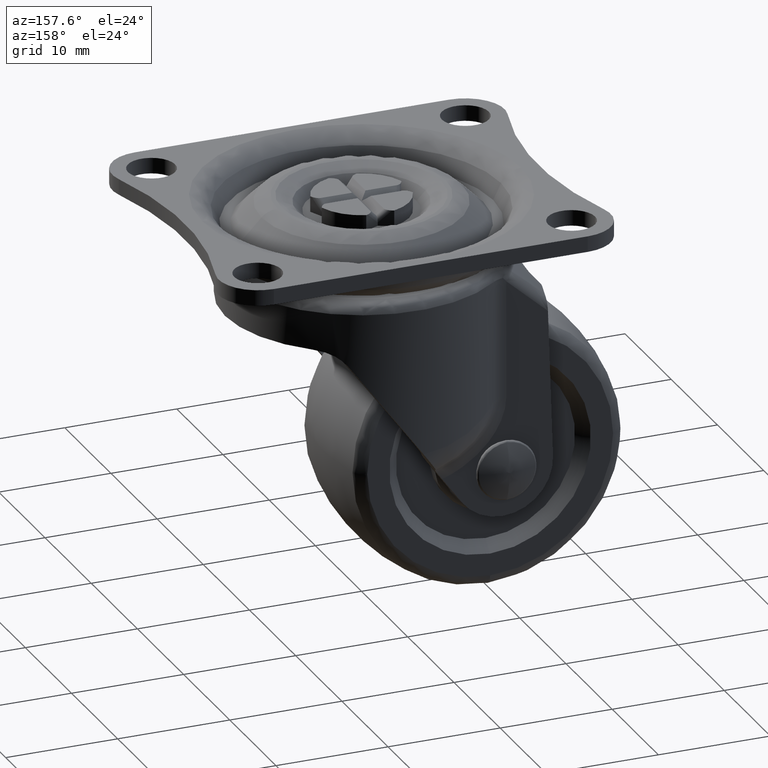
[diagram: clean part render]
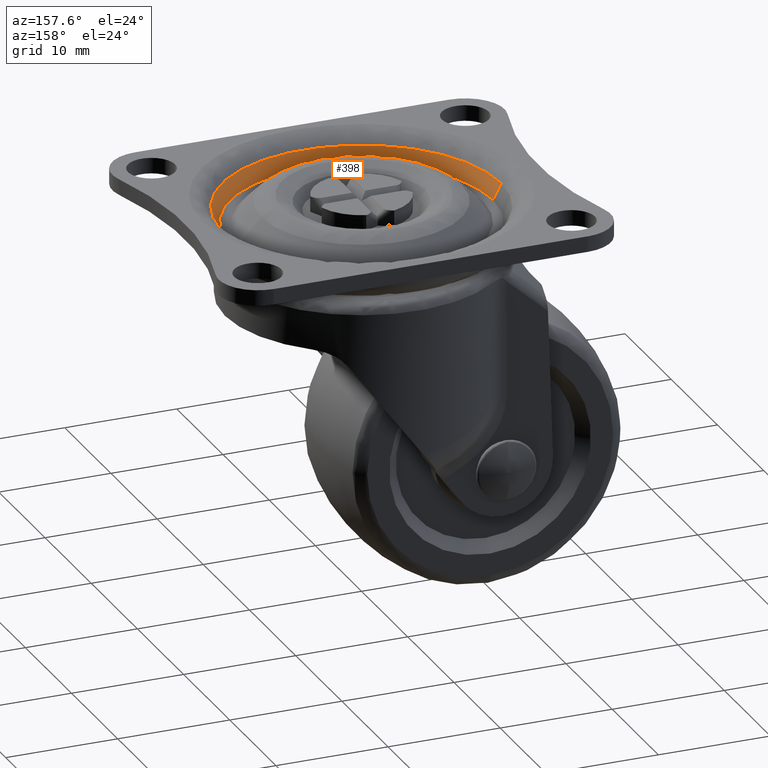
[diagram: same view with one face highlighted and labeled with its STEP entity id]
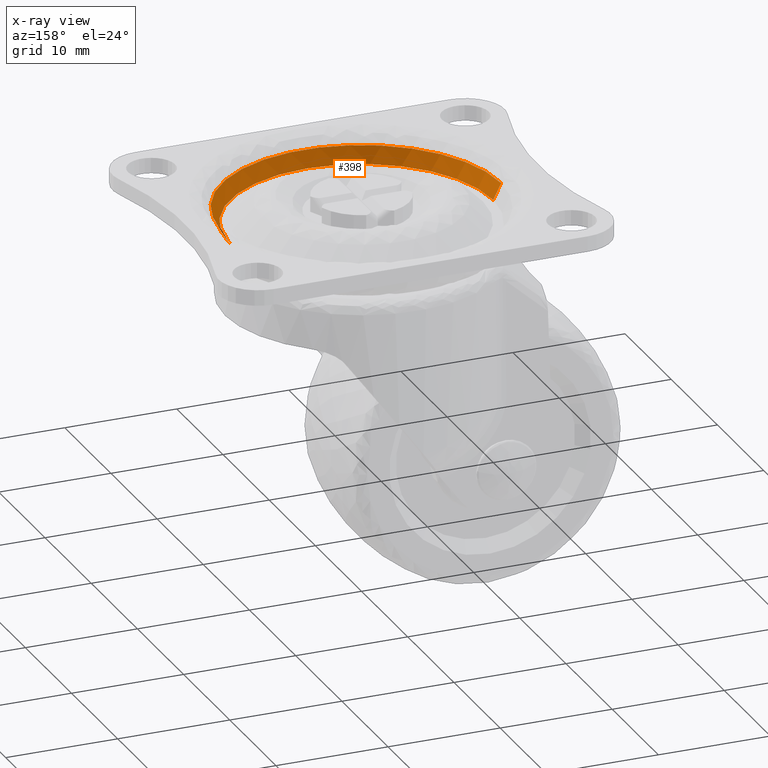
[diagram: x-ray of the same camera — body ghosted, the highlighted face saturated]
A machine part, auxiliary view. The second image highlights one B-rep face of the part: STEP entity #398.
The next image is the same camera in x-ray: the body ghosted, the highlighted face saturated — about 0% of this face is hidden behind the body in this view.
In plain terms, the highlighted face is a freeform B-spline surface patch.
Its self-contained STEP definition (entity closure, byte-faithful):
#398=ADVANCED_FACE('',(#2265),#2264,.F.);
#2264=( BOUNDED_SURFACE() B_SPLINE_SURFACE( 2,1,((#4873,#4874),(#4875,#4876),(#4877,#4878),(#4879,#4880),(#4881,#4882)), .UNSPECIFIED.,.F.,.F.,.F.) B_SPLINE_SURFACE_WITH_KNOTS((3,2,3),(2,2),(0.00000000000E+00,5.00000000000E-01,1.00000000000E+00),(0.00000000000E+00,1.00000000000E+00), .UNSPECIFIED. ) GEOMETRIC_REPRESENTATION_ITEM() RATIONAL_B_SPLINE_SURFACE(((1.00000000000E+00,1.00000000000E+00),(7.07106781187E-01,7.07106781187E-01),(1.00000000000E+00,1.00000000000E+00),(7.07106781187E-01,7.07106781187E-01),(1.00000000000E+00,1.00000000000E+00))) REPRESENTATION_ITEM('') SURFACE() );
#2265=FACE_OUTER_BOUND('',#4883,.T.);
#4873=CARTESIAN_POINT('',(-1.17500000000E+01,-2.87791997800E-15,-2.50000200000E+00));
#4874=CARTESIAN_POINT('',(-1.24556695986E+01,-3.05075918102E-15,-1.09986278751E+00));
#4875=CARTESIAN_POINT('',(-1.17500000000E+01,-1.17500000000E+01,-2.50000200000E+00));
#4876=CARTESIAN_POINT('',(-1.24556695986E+01,-1.24556695986E+01,-1.09986278751E+00));
#4877=CARTESIAN_POINT('',(2.15843998350E-15,-1.17500000000E+01,-2.50000200000E+00));
#4878=CARTESIAN_POINT('',(2.28806938577E-15,-1.24556695986E+01,-1.09986278751E+00));
#4879=CARTESIAN_POINT('',(1.17500000000E+01,-1.17500000000E+01,-2.50000200000E+00));
#4880=CARTESIAN_POINT('',(1.24556695986E+01,-1.24556695986E+01,-1.09986278751E+00));
#4881=CARTESIAN_POINT('',(1.17500000000E+01,1.43895998900E-15,-2.50000200000E+00));
#4882=CARTESIAN_POINT('',(1.24556695986E+01,1.52537959051E-15,-1.09986278751E+00));
#4883=EDGE_LOOP('',(#6155,#6156,#6157,#6158));
#6155=ORIENTED_EDGE('',*,*,#6776,.T.);
#6156=ORIENTED_EDGE('',*,*,#6834,.F.);
#6157=ORIENTED_EDGE('',*,*,#6742,.T.);
#6158=ORIENTED_EDGE('',*,*,#6835,.T.);
#6742=EDGE_CURVE('',#9117,#9118,#9119,.T.);
#6776=EDGE_CURVE('',#9347,#9340,#9348,.T.);
#6834=EDGE_CURVE('',#9117,#9340,#9733,.T.);
#6835=EDGE_CURVE('',#9118,#9347,#9739,.T.);
#9117=VERTEX_POINT('',#12277);
#9118=VERTEX_POINT('',#12278);
#9119=CIRCLE('',#12282,1.17500000000E+01);
#9340=VERTEX_POINT('',#12461);
#9347=VERTEX_POINT('',#12465);
#9348=CIRCLE('',#12469,1.24556695986E+01);
#9733=(BOUNDED_CURVE() B_SPLINE_CURVE(1,(#13076,#13077),.UNSPECIFIED.,.F.,.F.) B_SPLINE_CURVE_WITH_KNOTS((2,2),(0.00000000000E+00,1.00000000000E+00),.UNSPECIFIED.) CURVE() GEOMETRIC_REPRESENTATION_ITEM() RATIONAL_B_SPLINE_CURVE((1.00000000000E+00,1.00000000000E+00)) REPRESENTATION_ITEM('') );
#9739=(BOUNDED_CURVE() B_SPLINE_CURVE(1,(#13078,#13079),.UNSPECIFIED.,.F.,.F.) B_SPLINE_CURVE_WITH_KNOTS((2,2),(0.00000000000E+00,1.00000000000E+00),.UNSPECIFIED.) CURVE() GEOMETRIC_REPRESENTATION_ITEM() RATIONAL_B_SPLINE_CURVE((7.50000000000E-01,7.50000000000E-01)) REPRESENTATION_ITEM('') );
#12277=CARTESIAN_POINT('',(1.17500000000E+01,7.10542735760E-15,-2.50000200000E+00));
#12278=CARTESIAN_POINT('',(-1.17500000000E+01,0.00000000000E+00,-2.50000200000E+00));
#12279=CARTESIAN_POINT('',(0.00000000000E+00,0.00000000000E+00,-2.50000200000E+00));
#12280=DIRECTION('',(-0.00000000000E+00,0.00000000000E+00,-1.00000000000E+00));
#12281=DIRECTION('',(-1.00000000000E+00,-1.22460635382E-16,0.00000000000E+00));
#12282=AXIS2_PLACEMENT_3D('',#12279,#12280,#12281);
#12461=CARTESIAN_POINT('',(1.24556695986E+01,2.36847578587E-15,-1.09986278751E+00));
#12465=CARTESIAN_POINT('',(-1.24556695986E+01,0.00000000000E+00,-1.09986278751E+00));
#12466=CARTESIAN_POINT('',(0.00000000000E+00,0.00000000000E+00,-1.09986278751E+00));
#12467=DIRECTION('',(0.00000000000E+00,0.00000000000E+00,1.00000000000E+00));
#12468=DIRECTION('',(-1.00000000000E+00,-1.22460635382E-16,0.00000000000E+00));
#12469=AXIS2_PLACEMENT_3D('',#12466,#12467,#12468);
#13076=CARTESIAN_POINT('',(1.17500000000E+01,4.31687996699E-15,-2.50000200000E+00));
#13077=CARTESIAN_POINT('',(1.24556695986E+01,4.57613877153E-15,-1.09986278751E+00));
#13078=CARTESIAN_POINT('',(-1.17500000000E+01,-4.14483262527E-15,-2.50000200000E+00));
#13079=CARTESIAN_POINT('',(-1.24556695986E+01,-4.73695157173E-15,-1.09986278751E+00));